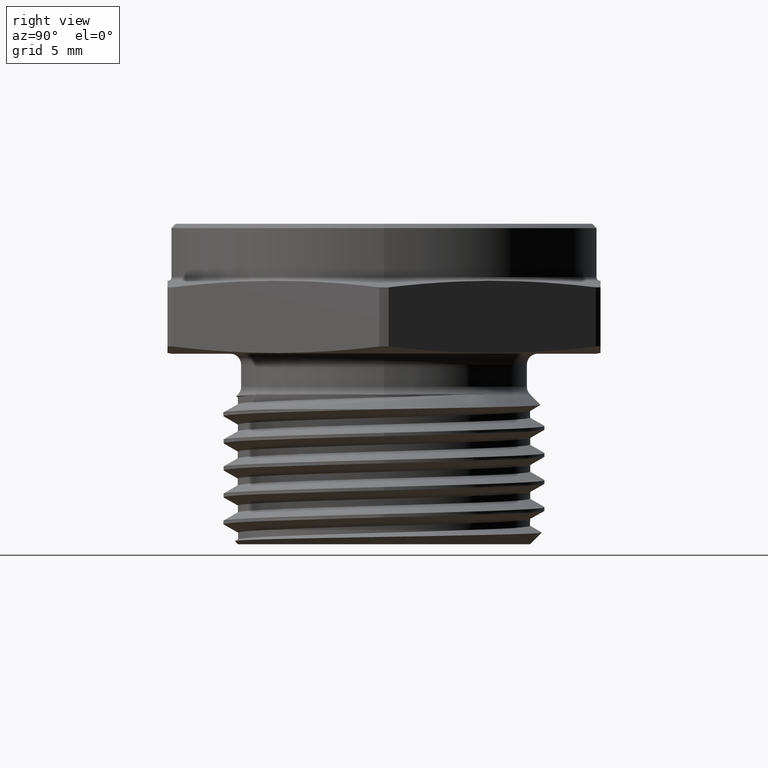
[diagram: clean part render]
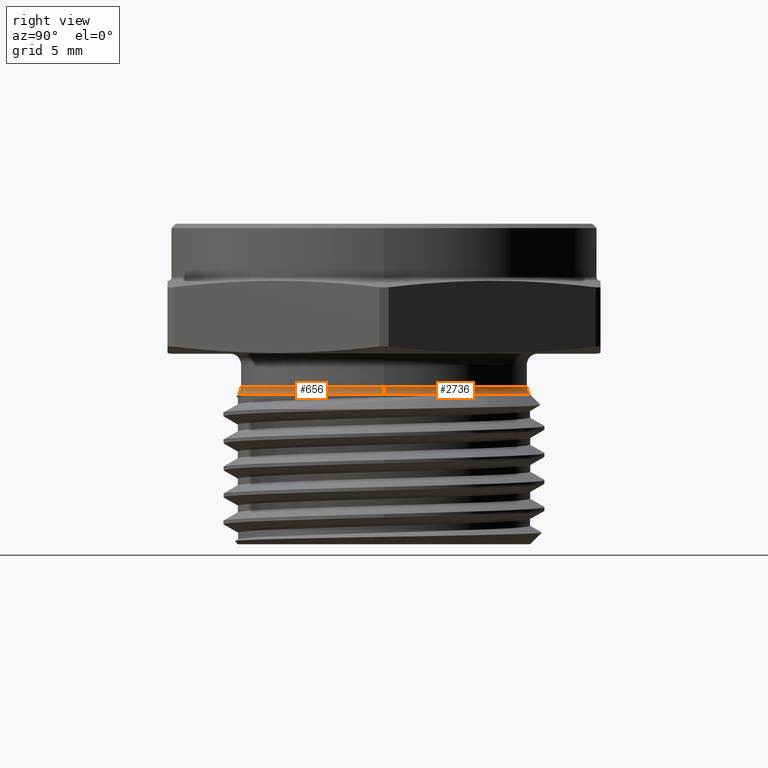
[diagram: same view with one multi-face feature highlighted, each face labeled with its STEP entity id]
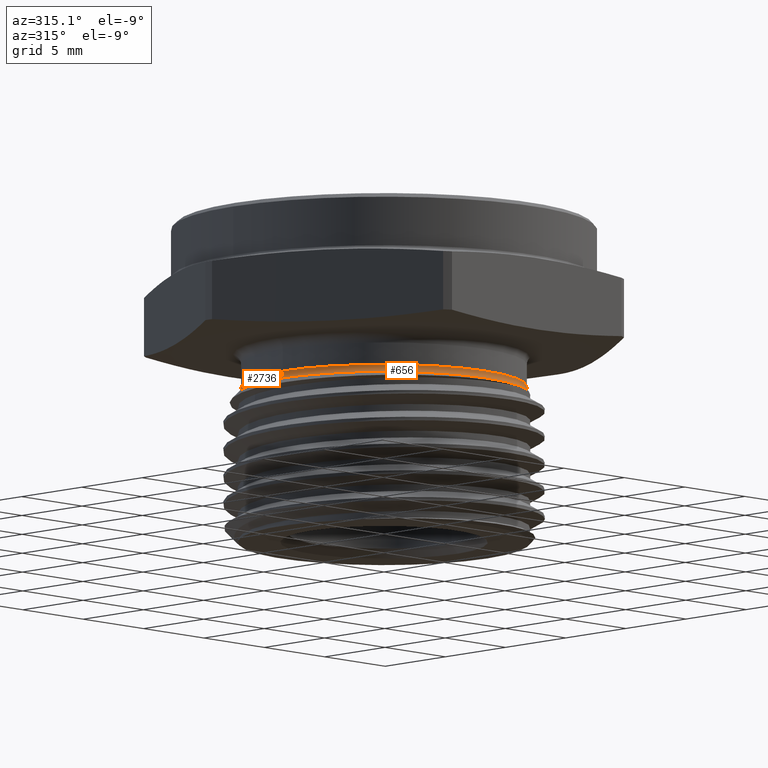
[diagram: same view with one multi-face feature highlighted, each face labeled with its STEP entity id]
A machine part, right view. The highlighted faces form ONE feature: a constant-radius fillet chain: 2 tangent blend faces with common blend radius 0.635 mm. The faces share edges in the B-rep.
A second angle (auxiliary view) of the same feature is appended — it is thin or edge-on in the first view.
Their STEP definitions:
[1] entity #2736 (Torus):
#278 = CIRCLE ( 'NONE', #521, 0.02500000000000007400 ) ;
#284 = CIRCLE ( 'NONE', #523, 0.3300000000000000200 ) ;
#286 = CIRCLE ( 'NONE', #524, 0.3373223304703363300 ) ;
#339 = VERTEX_POINT ( 'NONE', #3078 ) ;
#388 = VERTEX_POINT ( 'NONE', #3055 ) ;
#390 = VERTEX_POINT ( 'NONE', #3053 ) ;
#521 = AXIS2_PLACEMENT_3D ( 'NONE', #1012, #1013, #1014 ) ;
#523 = AXIS2_PLACEMENT_3D ( 'NONE', #1019, #1020, #1021 ) ;
#524 = AXIS2_PLACEMENT_3D ( 'NONE', #1024, #1025, #1026 ) ;
#527 = AXIS2_PLACEMENT_3D ( 'NONE', #1035, #1036, #1037 ) ;
#533 = AXIS2_PLACEMENT_3D ( 'NONE', #1053, #1052, #1055 ) ;
#686 = EDGE_LOOP ( 'NONE', ( #2542, #2543, #2544, #2545 ) ) ;
#1012 = CARTESIAN_POINT ( 'NONE',  ( -0.3550000000000000400, 4.347496136973104100E-017, -0.07632233047033618000 ) ) ;
#1013 = DIRECTION ( 'NONE',  ( 1.224646799147353200E-016, 1.000000000000000000, 0.0000000000000000000 ) ) ;
#1014 = DIRECTION ( 'NONE',  ( -1.000000000000000000, 1.224646799147351200E-016, 0.0000000000000000000 ) ) ;
#1019 = CARTESIAN_POINT ( 'NONE',  ( 0.0000000000000000000, 0.0000000000000000000, -0.07632233047033618000 ) ) ;
#1020 = DIRECTION ( 'NONE',  ( -0.0000000000000000000, -0.0000000000000000000, 1.000000000000000000 ) ) ;
#1021 = DIRECTION ( 'NONE',  ( 1.000000000000000000, 0.0000000000000000000, 0.0000000000000000000 ) ) ;
#1024 = CARTESIAN_POINT ( 'NONE',  ( 0.0000000000000000000, 0.0000000000000000000, -0.09399999999999990300 ) ) ;
#1025 = DIRECTION ( 'NONE',  ( -0.0000000000000000000, -0.0000000000000000000, 1.000000000000000000 ) ) ;
#1026 = DIRECTION ( 'NONE',  ( 1.000000000000000000, 0.0000000000000000000, 0.0000000000000000000 ) ) ;
#1035 = CARTESIAN_POINT ( 'NONE',  ( 0.3550000000000000400, 0.0000000000000000000, -0.07632233047033618000 ) ) ;
#1036 = DIRECTION ( 'NONE',  ( 0.0000000000000000000, -1.000000000000000000, 0.0000000000000000000 ) ) ;
#1037 = DIRECTION ( 'NONE',  ( 0.0000000000000000000, 0.0000000000000000000, -1.000000000000000000 ) ) ;
#1052 = DIRECTION ( 'NONE',  ( -0.0000000000000000000, -0.0000000000000000000, 1.000000000000000000 ) ) ;
#1053 = CARTESIAN_POINT ( 'NONE',  ( 0.0000000000000000000, 0.0000000000000000000, -0.07632233047033618000 ) ) ;
#1055 = DIRECTION ( 'NONE',  ( 1.000000000000000000, 0.0000000000000000000, 0.0000000000000000000 ) ) ;
#1502 = CARTESIAN_POINT ( 'NONE',  ( -0.3373223304703363300, 0.0000000000000000000, -0.09399999999999990300 ) ) ;
#2469 = CIRCLE ( 'NONE', #527, 0.02500000000000004000 ) ;
#2476 = TOROIDAL_SURFACE ( 'NONE', #533, 0.3550000000000000400, 0.02500000000000004600 ) ;
#2477 = FACE_OUTER_BOUND ( 'NONE', #686, .T. ) ;
#2520 = VERTEX_POINT ( 'NONE', #1502 ) ;
#2542 = ORIENTED_EDGE ( 'NONE', *, *, #2706, .F. ) ;
#2543 = ORIENTED_EDGE ( 'NONE', *, *, #2708, .F. ) ;
#2544 = ORIENTED_EDGE ( 'NONE', *, *, #2713, .T. ) ;
#2545 = ORIENTED_EDGE ( 'NONE', *, *, #2709, .T. ) ;
#2706 = EDGE_CURVE ( 'NONE', #390, #2520, #278, .T. ) ;
#2708 = EDGE_CURVE ( 'NONE', #388, #390, #284, .T. ) ;
#2709 = EDGE_CURVE ( 'NONE', #339, #2520, #286, .T. ) ;
#2713 = EDGE_CURVE ( 'NONE', #388, #339, #2469, .T. ) ;
#2736 = ADVANCED_FACE ( 'NONE', ( #2477 ), #2476, .F. ) ;
#3053 = CARTESIAN_POINT ( 'NONE',  ( -0.3300000000000000200, 4.086170780050248000E-017, -0.07632233047033618000 ) ) ;
#3055 = CARTESIAN_POINT ( 'NONE',  ( 0.3300000000000000200, 0.0000000000000000000, -0.07632233047033618000 ) ) ;
#3078 = CARTESIAN_POINT ( 'NONE',  ( 0.3373223304703363300, 4.340284990873324800E-017, -0.09399999999999990300 ) ) ;
[2] entity #656 (Torus):
#46 = ORIENTED_EDGE ( 'NONE', *, *, #2707, .F. ) ;
#47 = ORIENTED_EDGE ( 'NONE', *, *, #2706, .T. ) ;
#48 = ORIENTED_EDGE ( 'NONE', *, *, #2711, .T. ) ;
#49 = ORIENTED_EDGE ( 'NONE', *, *, #2713, .F. ) ;
#278 = CIRCLE ( 'NONE', #521, 0.02500000000000007400 ) ;
#282 = CIRCLE ( 'NONE', #522, 0.3300000000000000200 ) ;
#287 = CIRCLE ( 'NONE', #525, 0.3373223304703363300 ) ;
#339 = VERTEX_POINT ( 'NONE', #3078 ) ;
#388 = VERTEX_POINT ( 'NONE', #3055 ) ;
#390 = VERTEX_POINT ( 'NONE', #3053 ) ;
#428 = AXIS2_PLACEMENT_3D ( 'NONE', #1385, #1384, #1387 ) ;
#521 = AXIS2_PLACEMENT_3D ( 'NONE', #1012, #1013, #1014 ) ;
#522 = AXIS2_PLACEMENT_3D ( 'NONE', #1015, #1016, #1017 ) ;
#525 = AXIS2_PLACEMENT_3D ( 'NONE', #1027, #1028, #1029 ) ;
#527 = AXIS2_PLACEMENT_3D ( 'NONE', #1035, #1036, #1037 ) ;
#656 = ADVANCED_FACE ( 'NONE', ( #2430 ), #2455, .F. ) ;
#714 = EDGE_LOOP ( 'NONE', ( #46, #47, #48, #49 ) ) ;
#1012 = CARTESIAN_POINT ( 'NONE',  ( -0.3550000000000000400, 4.347496136973104100E-017, -0.07632233047033618000 ) ) ;
#1013 = DIRECTION ( 'NONE',  ( 1.224646799147353200E-016, 1.000000000000000000, 0.0000000000000000000 ) ) ;
#1014 = DIRECTION ( 'NONE',  ( -1.000000000000000000, 1.224646799147351200E-016, 0.0000000000000000000 ) ) ;
#1015 = CARTESIAN_POINT ( 'NONE',  ( 0.0000000000000000000, 0.0000000000000000000, -0.07632233047033618000 ) ) ;
#1016 = DIRECTION ( 'NONE',  ( -0.0000000000000000000, -0.0000000000000000000, 1.000000000000000000 ) ) ;
#1017 = DIRECTION ( 'NONE',  ( 1.000000000000000000, 0.0000000000000000000, 0.0000000000000000000 ) ) ;
#1027 = CARTESIAN_POINT ( 'NONE',  ( 0.0000000000000000000, 0.0000000000000000000, -0.09399999999999990300 ) ) ;
#1028 = DIRECTION ( 'NONE',  ( -0.0000000000000000000, -0.0000000000000000000, 1.000000000000000000 ) ) ;
#1029 = DIRECTION ( 'NONE',  ( 1.000000000000000000, 0.0000000000000000000, 0.0000000000000000000 ) ) ;
#1035 = CARTESIAN_POINT ( 'NONE',  ( 0.3550000000000000400, 0.0000000000000000000, -0.07632233047033618000 ) ) ;
#1036 = DIRECTION ( 'NONE',  ( 0.0000000000000000000, -1.000000000000000000, 0.0000000000000000000 ) ) ;
#1037 = DIRECTION ( 'NONE',  ( 0.0000000000000000000, 0.0000000000000000000, -1.000000000000000000 ) ) ;
#1384 = DIRECTION ( 'NONE',  ( -0.0000000000000000000, -0.0000000000000000000, 1.000000000000000000 ) ) ;
#1385 = CARTESIAN_POINT ( 'NONE',  ( 0.0000000000000000000, 0.0000000000000000000, -0.07632233047033618000 ) ) ;
#1387 = DIRECTION ( 'NONE',  ( 1.000000000000000000, 0.0000000000000000000, 0.0000000000000000000 ) ) ;
#1502 = CARTESIAN_POINT ( 'NONE',  ( -0.3373223304703363300, 0.0000000000000000000, -0.09399999999999990300 ) ) ;
#2430 = FACE_OUTER_BOUND ( 'NONE', #714, .T. ) ;
#2455 = TOROIDAL_SURFACE ( 'NONE', #428, 0.3550000000000000400, 0.02500000000000004600 ) ;
#2469 = CIRCLE ( 'NONE', #527, 0.02500000000000004000 ) ;
#2520 = VERTEX_POINT ( 'NONE', #1502 ) ;
#2706 = EDGE_CURVE ( 'NONE', #390, #2520, #278, .T. ) ;
#2707 = EDGE_CURVE ( 'NONE', #390, #388, #282, .T. ) ;
#2711 = EDGE_CURVE ( 'NONE', #2520, #339, #287, .T. ) ;
#2713 = EDGE_CURVE ( 'NONE', #388, #339, #2469, .T. ) ;
#3053 = CARTESIAN_POINT ( 'NONE',  ( -0.3300000000000000200, 4.086170780050248000E-017, -0.07632233047033618000 ) ) ;
#3055 = CARTESIAN_POINT ( 'NONE',  ( 0.3300000000000000200, 0.0000000000000000000, -0.07632233047033618000 ) ) ;
#3078 = CARTESIAN_POINT ( 'NONE',  ( 0.3373223304703363300, 4.340284990873324800E-017, -0.09399999999999990300 ) ) ;